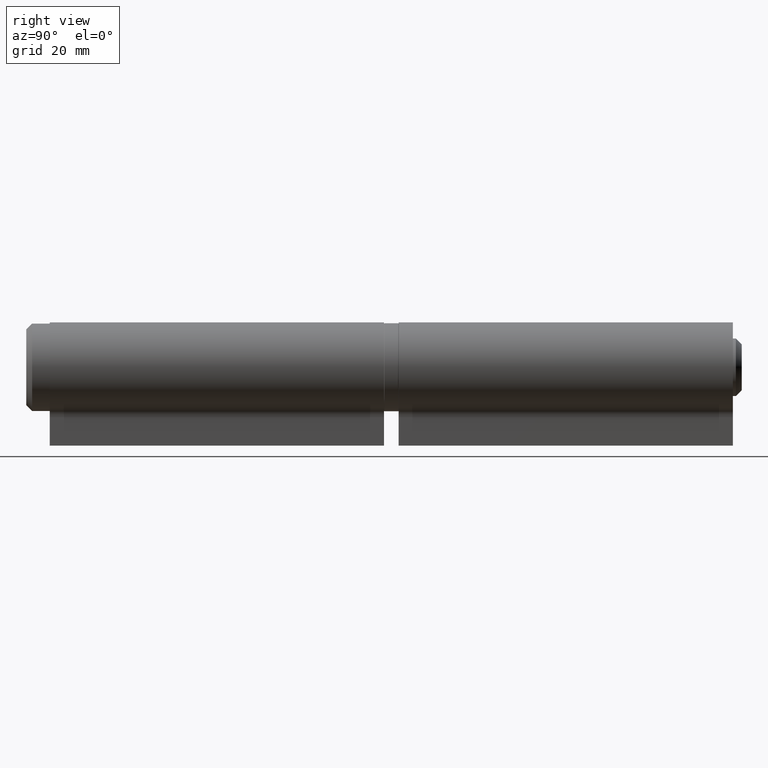
[diagram: clean part render]
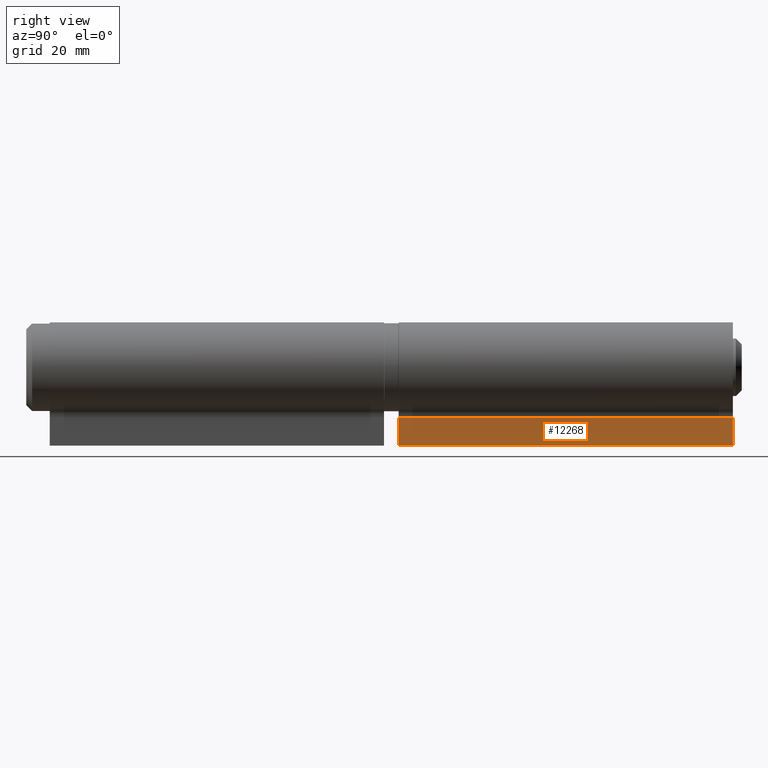
[diagram: same view with one face highlighted and labeled with its STEP entity id]
A machine part, right view. The second image highlights one B-rep face of the part: STEP entity #12268.
In plain terms, the highlighted planar face has unit normal (-1, 0, -0).
Its self-contained STEP definition (entity closure, byte-faithful):
#488 = LINE ( 'NONE', #629, #13855 ) ;
#590 = EDGE_LOOP ( 'NONE', ( #12886, #12998, #3723, #12736 ) ) ;
#629 = CARTESIAN_POINT ( 'NONE',  ( 2.550000000000000266, 28.50000000000000355, -13.35000000000000142 ) ) ;
#632 = CARTESIAN_POINT ( 'NONE',  ( 2.550000000000000266, 28.50000000000000355, -13.35000000000000142 ) ) ;
#1221 = VECTOR ( 'NONE', #11733, 1000.000000000000000 ) ;
#2023 = VECTOR ( 'NONE', #12384, 1000.000000000000000 ) ;
#2276 = VECTOR ( 'NONE', #8261, 1000.000000000000000 ) ;
#3300 = EDGE_CURVE ( 'NONE', #7339, #8197, #13697, .T. ) ;
#3413 = LINE ( 'NONE', #6032, #1221 ) ;
#3723 = ORIENTED_EDGE ( 'NONE', *, *, #8763, .F. ) ;
#3775 = EDGE_CURVE ( 'NONE', #13930, #8197, #488, .T. ) ;
#3801 = LINE ( 'NONE', #10438, #2276 ) ;
#4891 = DIRECTION ( 'NONE',  ( -1.792067531135117693E-16, 0.000000000000000000, 1.000000000000000000 ) ) ;
#6032 = CARTESIAN_POINT ( 'NONE',  ( 2.549999999999999378, 28.50000000000000355, -8.509994124557316297 ) ) ;
#6426 = AXIS2_PLACEMENT_3D ( 'NONE', #7052, #7104, #4891 ) ;
#7052 = CARTESIAN_POINT ( 'NONE',  ( 2.550000000000000266, 28.50000000000000355, -13.35000000000000142 ) ) ;
#7104 = DIRECTION ( 'NONE',  ( -1.000000000000000000, 0.000000000000000000, -1.792067531135117693E-16 ) ) ;
#7339 = VERTEX_POINT ( 'NONE', #13165 ) ;
#7815 = FACE_OUTER_BOUND ( 'NONE', #590, .T. ) ;
#8197 = VERTEX_POINT ( 'NONE', #9608 ) ;
#8261 = DIRECTION ( 'NONE',  ( 1.792067531135117447E-16, -0.000000000000000000, -1.000000000000000000 ) ) ;
#8763 = EDGE_CURVE ( 'NONE', #12172, #13930, #3801, .T. ) ;
#8949 = CARTESIAN_POINT ( 'NONE',  ( 2.549999999999999378, 28.50000000000000355, -8.509994124557316297 ) ) ;
#9258 = PLANE ( 'NONE',  #6426 ) ;
#9283 = DIRECTION ( 'NONE',  ( -0.000000000000000000, -1.000000000000000000, -0.000000000000000000 ) ) ;
#9608 = CARTESIAN_POINT ( 'NONE',  ( 2.550000000000000266, -28.50000000000000355, -13.35000000000000142 ) ) ;
#10438 = CARTESIAN_POINT ( 'NONE',  ( 2.550000000000000266, 28.50000000000000355, -13.35000000000000142 ) ) ;
#11110 = EDGE_CURVE ( 'NONE', #12172, #7339, #3413, .T. ) ;
#11733 = DIRECTION ( 'NONE',  ( -0.000000000000000000, -1.000000000000000000, -0.000000000000000000 ) ) ;
#12172 = VERTEX_POINT ( 'NONE', #8949 ) ;
#12268 = ADVANCED_FACE ( 'NONE', ( #7815 ), #9258, .F. ) ;
#12384 = DIRECTION ( 'NONE',  ( 1.792067531135117447E-16, -0.000000000000000000, -1.000000000000000000 ) ) ;
#12736 = ORIENTED_EDGE ( 'NONE', *, *, #11110, .T. ) ;
#12886 = ORIENTED_EDGE ( 'NONE', *, *, #3300, .T. ) ;
#12998 = ORIENTED_EDGE ( 'NONE', *, *, #3775, .F. ) ;
#13165 = CARTESIAN_POINT ( 'NONE',  ( 2.549999999999999378, -28.50000000000000355, -8.509994124557316297 ) ) ;
#13372 = CARTESIAN_POINT ( 'NONE',  ( 2.550000000000000266, -28.50000000000000355, -13.35000000000000142 ) ) ;
#13697 = LINE ( 'NONE', #13372, #2023 ) ;
#13855 = VECTOR ( 'NONE', #9283, 1000.000000000000000 ) ;
#13930 = VERTEX_POINT ( 'NONE', #632 ) ;